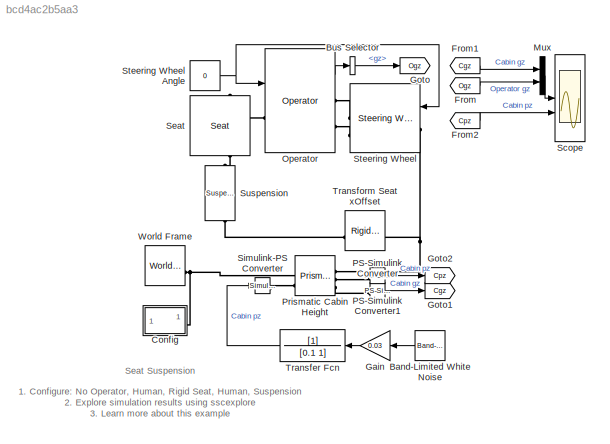
MODEL slx_bcd4ac2b5aa3
KIND model
CONFIG AbsTol = 1e-3
CONFIG EnableMultiTasking = on
CONFIG SolverName = VariableStepAuto
BLOCK [Reference] Band-Limited White Noise  REF=simulink/Sources/Band-Limited
White Noise
  NameLocation = right
  SourceBlock = simulink/Sources/Band-Limited\nWhite Noise
  SourceType = Band-Limited White Noise.
BLOCK [BusSelector] Bus Selector
  OutputSignals = gz
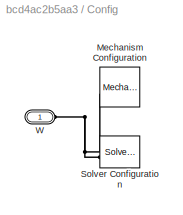
BLOCK [SubSystem] Config
BLOCK [Reference] Config/Mechanism Configuration  REF=sm_lib/Utilities/Mechanism
Configuration
  SourceBlock = sm_lib/Utilities/Mechanism\nConfiguration
  SourceType = Mechanism\nConfiguration
BLOCK [Reference] Config/Solver Configuration  REF=nesl_utility/Solver
Configuration
  SourceBlock = nesl_utility/Solver\nConfiguration
  SourceType = Solver\nConfiguration
BLOCK [PMIOPort] Config/W
  Side = Left
BLOCK [From] From
  GotoTag = Ogz
BLOCK [From] From1
  GotoTag = Cgz
BLOCK [From] From2
  GotoTag = Cpz
BLOCK [Gain] Gain
  Gain = 0.03
BLOCK [Goto] Goto
  GotoTag = Ogz
BLOCK [Goto] Goto1
  GotoTag = Cgz
BLOCK [Goto] Goto2
  GotoTag = Cpz
BLOCK [Mux] Mux
  DisplayOption = bar
  Inputs = 2
BLOCK [Reference] Operator  REF=sm_vehicle_utilities_lib/Operator  (lib defined in slx_7901a99a1966, slx_bde73e06ff5b)
  AttributesFormatString = %<popup_operator>
  SourceBlock = sm_vehicle_utilities_lib/Operator
BLOCK [Reference] PS-Simulink Converter  REF=nesl_utility/PS-Simulink
Converter
  SourceBlock = nesl_utility/PS-Simulink\nConverter
  SourceType = PS-Simulink\nConverter
BLOCK [Reference] PS-Simulink Converter1  REF=nesl_utility/PS-Simulink
Converter
  SourceBlock = nesl_utility/PS-Simulink\nConverter
  SourceType = PS-Simulink\nConverter
BLOCK [Reference] Prismatic Cabin Height  REF=sm_lib/Joints/Prismatic
Joint
  SourceBlock = sm_lib/Joints/Prismatic\nJoint
  SourceType = Prismatic\nJoint
BLOCK [Scope] Scope
  ActiveDisplayYMaximum = 5.51602
  ActiveDisplayYMinimum = -5.74958
  Floating = off
  GraphicalSettings = {"GraphicalSettings":{"LegacySettings":true,"Style":{"Style":{"AxesColor":"[0 0 0]","ChannelNames":["",""],"ColorOrder":"[1 0.909803921568627 0.392156862745098;0.149019607843137 0.549019607843137 0.866666666666667;0.96078431372549 0.466666666666667 0.16078431372549;0.286274509803922 0.858823529411765 0.250980392156863;0.752941176470588 0.36078431372549 0.984313725490196;0.423529411764706 0.9568627...<+566ch>
  LayoutDimensionsString = [2 1]
  MultipleDisplayCache = [{"MaxYLimMag":5.74958,"MaxYLimReal":5.51602,"MinYLimMag":0,"MinYLimReal":-5.74958,"PlotAsMagnitudePhase":false,"ShowGrid":true,"ShowLegend":true,"Title":"%<SignalLabel>","YLabel":""},{"MaxYLimMag":0.04473,"MaxYLimReal":0.04453,"MinYLimMag":0,"MinYLimReal":-0.04473,"PlotAsMagnitudePhase":false,"ShowGrid":true,"ShowLegend":true,"Title":"%<SignalLabel>","YLabel":""}]
  NumInputPorts = 2
  ShowLegend = on
  WasSavedAsWebScope = on
  WindowPosition = [760 552 560 420]
BLOCK [Reference] Seat  REF=Tractor_Geometry/Seat
  NameLocation = left
  SourceBlock = Tractor_Geometry/Seat
BLOCK [Reference] Simulink-PS Converter  REF=nesl_utility/Simulink-PS
Converter
  SourceBlock = nesl_utility/Simulink-PS\nConverter
  SourceType = Simulink-PS\nConverter
BLOCK [Reference] Steering Wheel  REF=sm_vehicle_utilities_lib/Steering  (lib defined in slx_7901a99a1966, slx_bde73e06ff5b)
Wheel
  SourceBlock = sm_vehicle_utilities_lib/Steering\nWheel
BLOCK [Constant] Steering Wheel Angle
  NameLocation = left
  Value = 0
BLOCK [Reference] Suspension  REF=sm_vehicle_utilities_lib/Suspension  (lib defined in slx_7901a99a1966, slx_bde73e06ff5b)
  AttributesFormatString = %<popup_suspension>
  NameLocation = right
  SourceBlock = sm_vehicle_utilities_lib/Suspension
BLOCK [TransferFcn] Transfer Fcn
  Denominator = [0.1 1]
BLOCK [Reference] Transform Seat xOffset  REF=sm_lib/Frames and
Transforms/Rigid
Transform
  NameLocation = top
  SourceBlock = sm_lib/Frames and\nTransforms/Rigid\nTransform
  SourceType = Rigid\nTransform
BLOCK [Reference] World Frame  REF=sm_lib/Frames and
Transforms/World Frame
  SourceBlock = sm_lib/Frames and\nTransforms/World Frame
  SourceType = World Frame
ANNOTATION (root): 1. Configure: No Operator , Human, Rigid Seat , Human, Suspension 2. Explore simulation results using sscexplore 3. Learn more about this example
ANNOTATION (root): Seat Suspension
LINE Band-Limited White Noise:1 -> Gain:1
LINE Bus Selector:1 -> Goto:1
LINE From1:1 -> Mux:1
LINE From2:1 -> Scope:2
LINE From:1 -> Mux:2
LINE Gain:1 -> Transfer Fcn:1
LINE Mux:1 -> Scope:1
LINE Operator:1 -> Bus Selector:1
LINE PS-Simulink Converter1:1 -> Goto2:1
LINE PS-Simulink Converter:1 -> Goto1:1
NET Steering Wheel Angle:1 -> Operator:1, Steering Wheel:1
LINE Transfer Fcn:1 -> Simulink-PS Converter:1
PNET net1: Config/Mechanism Configuration:RConn1 -- Config/Solver Configuration:RConn1 -- Config/W:RConn1
PNET net2: Config:LConn1 -- Prismatic Cabin Height:LConn1 -- World Frame:RConn1
PLINE Operator:LConn1 -- Seat:RConn1
PLINE Operator:RConn1 -- Steering Wheel:RConn1
PLINE Operator:RConn2 -- Steering Wheel:RConn2
PLINE PS-Simulink Converter1:LConn1 -- Prismatic Cabin Height:RConn2
PLINE PS-Simulink Converter:LConn1 -- Prismatic Cabin Height:RConn3
PLINE Prismatic Cabin Height:LConn2 -- Simulink-PS Converter:RConn1
PNET net3: Prismatic Cabin Height:RConn1 -- Steering Wheel:LConn1 -- Transform Seat xOffset:LConn1
PLINE Seat:LConn1 -- Suspension:RConn1
PLINE Suspension:LConn1 -- Transform Seat xOffset:RConn1
note: NET lines group one-source signal fan-out (src -> all destinations, sorted); 1:1 wires keep LINE; PNET lines group multi-terminal physical nets as a canonical sorted terminal list (undirected conserving connections); 2-terminal nets keep the pairwise PLINE form
